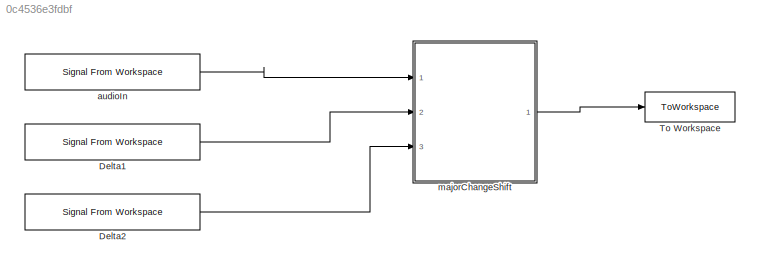
MODEL slx_0c4536e3fdbf
KIND model
CONFIG AbsTol = auto
CONFIG EnableMultiTasking = off
CONFIG FixedStep = auto
CONFIG InitFcn = initCallback
CONFIG MaxStep = auto
CONFIG MinStep = auto
CONFIG PostLoadFcn = postLoadCallback
CONFIG RelTol = 1e-3
CONFIG SampleTimeConstraint = Unconstrained
CONFIG SolverName = VariableStepAuto
CONFIG StartTime = 0.0
CONFIG StopFcn = stopCallback
CONFIG StopTime = 3
BLOCK [Reference] Delta1  REF=dspsrcs4/Signal From
Workspace
  Ports = [0, 1]
  SourceBlock = dspsrcs4/Signal From\nWorkspace
  SourceProductBaseCode = DS
  SourceType = Signal From Workspace
BLOCK [Reference] Delta2  REF=dspsrcs4/Signal From
Workspace
  Ports = [0, 1]
  SourceBlock = dspsrcs4/Signal From\nWorkspace
  SourceProductBaseCode = DS
  SourceType = Signal From Workspace
BLOCK [ToWorkspace] To Workspace
  FixptAsFi = on
  MaxDataPoints = inf
  Ports = [1]
  SampleTime = -1
  Save2DSignal = 2-D array (concatenate along first dimension)
  VariableName = AudioOut
BLOCK [Reference] audioIn  REF=dspsrcs4/Signal From
Workspace
  Ports = [0, 1]
  SourceBlock = dspsrcs4/Signal From\nWorkspace
  SourceProductBaseCode = DS
  SourceType = Signal From Workspace
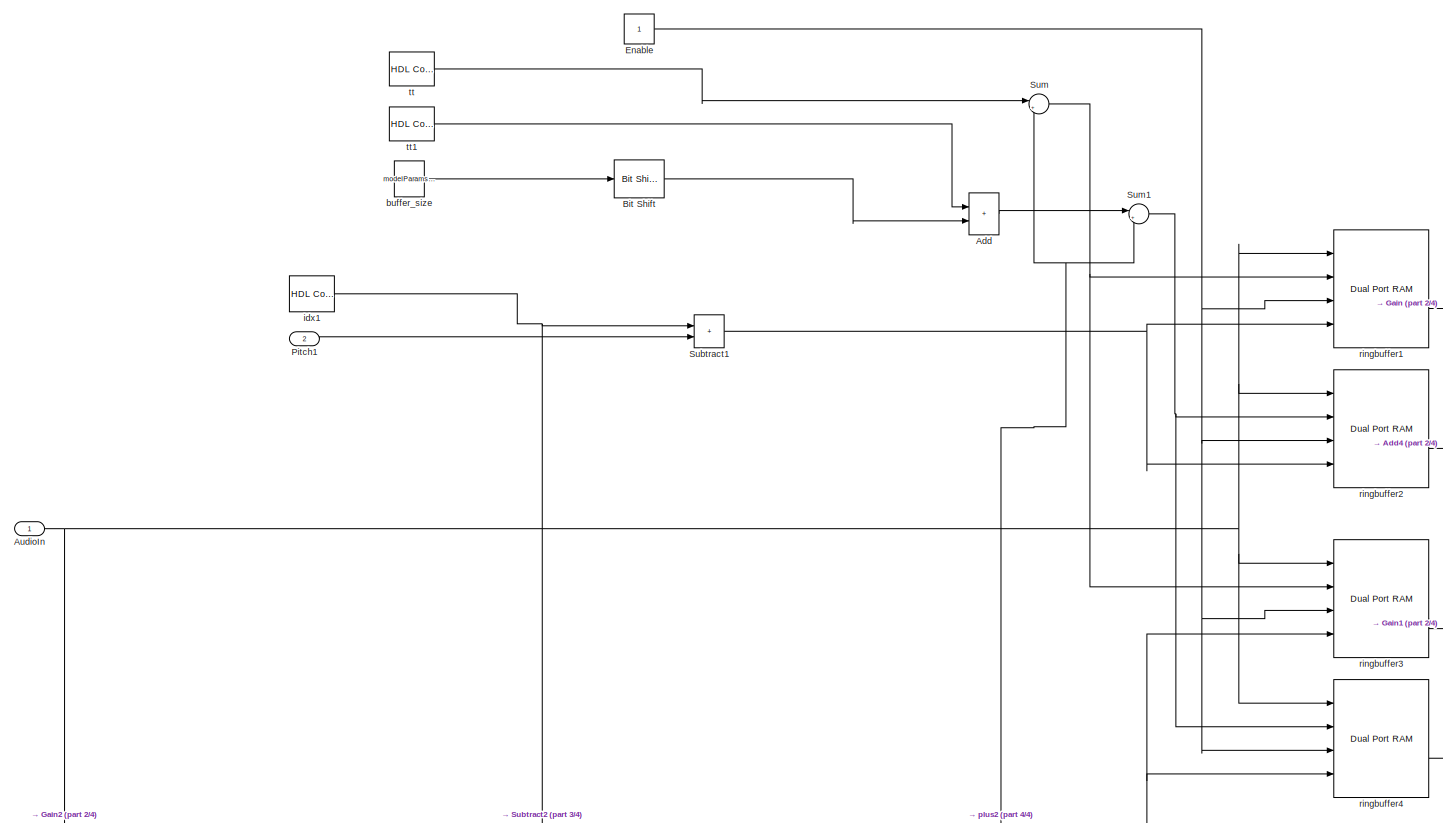
[diagram: majorChangeShift - part 1/4, most of the canvas]
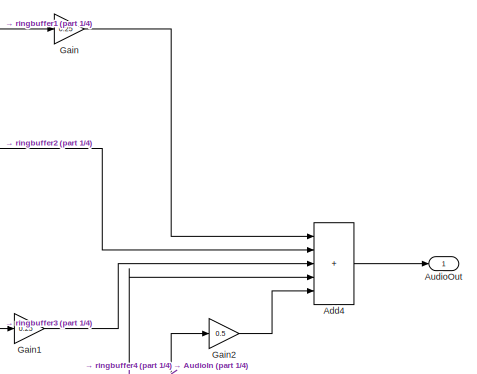
[diagram: majorChangeShift - part 2/4, middle right region]
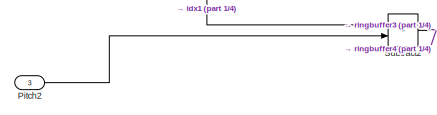
[diagram: majorChangeShift - part 3/4, bottom left region]
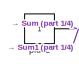
[diagram: majorChangeShift - part 4/4, bottom left region]
BLOCK [SubSystem] majorChangeShift
  Ports = [3, 1]
  RequestExecContextInheritance = off
BLOCK [Sum] majorChangeShift/Add
  IconShape = rectangular
  Ports = [2, 1]
  SampleTime = modelParams.audio.samplePeriod
BLOCK [Sum] majorChangeShift/Add4
  AccumDataTypeStr = Inherit: Same as first input
  IconShape = rectangular
  Inputs = +++++
  OutDataTypeStr = fixdt(1,24,16)
  Ports = [5, 1]
  SampleTime = modelParams.audio.samplePeriod
BLOCK [Inport] majorChangeShift/AudioIn
  SampleTime = modelParams.audio.samplePeriod
BLOCK [Outport] majorChangeShift/AudioOut
BLOCK [Reference] majorChangeShift/Bit Shift  REF=hdlsllib/Logic and Bit
Operations/Bit Shift
  Ports = [1, 1]
  SourceBlock = hdlsllib/Logic and Bit\nOperations/Bit Shift
  SourceProductBaseCode = SL
  SourceType = Bit Shift
BLOCK [Constant] majorChangeShift/Enable
  OutDataTypeStr = boolean
  SampleTime = modelParams.audio.samplePeriod
BLOCK [Gain] majorChangeShift/Gain
  Gain = 0.25
  SampleTime = modelParams.audio.samplePeriod
BLOCK [Gain] majorChangeShift/Gain1
  Gain = 0.25
  SampleTime = modelParams.audio.samplePeriod
BLOCK [Gain] majorChangeShift/Gain2
  Gain = 0.5
  SampleTime = modelParams.audio.samplePeriod
BLOCK [Inport] majorChangeShift/Pitch1
  Port = 2
  SampleTime = modelParams.audio.samplePeriod
BLOCK [Inport] majorChangeShift/Pitch2
  Port = 3
  SampleTime = modelParams.audio.samplePeriod
BLOCK [Sum] majorChangeShift/Subtract1
  AccumDataTypeStr = Inherit: Same as first input
  IconShape = rectangular
  OutDataTypeStr = Inherit: Inherit via back propagation
  Ports = [2, 1]
  RndMeth = Round
  SampleTime = modelParams.audio.samplePeriod
BLOCK [Sum] majorChangeShift/Subtract2
  AccumDataTypeStr = Inherit: Same as first input
  IconShape = rectangular
  OutDataTypeStr = Inherit: Inherit via back propagation
  Ports = [2, 1]
  RndMeth = Round
  SampleTime = modelParams.audio.samplePeriod
BLOCK [Sum] majorChangeShift/Sum
  AccumDataTypeStr = Inherit: Same as first input
  Inputs = |++
  OutDataTypeStr = uint16
  Ports = [2, 1]
  SampleTime = modelParams.audio.samplePeriod
BLOCK [Sum] majorChangeShift/Sum1
  AccumDataTypeStr = Inherit: Same as first input
  Inputs = |++
  OutDataTypeStr = uint16
  Ports = [2, 1]
  SampleTime = modelParams.audio.samplePeriod
BLOCK [Constant] majorChangeShift/buffer_size
  SampleTime = modelParams.audio.samplePeriod
  Value = modelParams.buffer_size
BLOCK [Reference] majorChangeShift/idx1  REF=hdlsllib/Sources/HDL Counter
  Ports = [0, 1]
  SourceBlock = hdlsllib/Sources/HDL Counter
  SourceProductBaseCode = SL
  SourceType = HDL Counter
BLOCK [Constant] majorChangeShift/plus2
  OutDataTypeStr = Inherit: Inherit via back propagation
  SampleTime = modelParams.audio.samplePeriod
BLOCK [Reference] majorChangeShift/ringbuffer1  REF=hdlsllib/HDL RAMs/Dual Port RAM
  Ports = [4, 2]
  SourceBlock = hdlsllib/HDL RAMs/Dual Port RAM
  SourceProductBaseCode = SL
  SourceType = Dual-port RAM
BLOCK [Reference] majorChangeShift/ringbuffer2  REF=hdlsllib/HDL RAMs/Dual Port RAM
  Ports = [4, 2]
  SourceBlock = hdlsllib/HDL RAMs/Dual Port RAM
  SourceProductBaseCode = SL
  SourceType = Dual-port RAM
BLOCK [Reference] majorChangeShift/ringbuffer3  REF=hdlsllib/HDL RAMs/Dual Port RAM
  Ports = [4, 2]
  SourceBlock = hdlsllib/HDL RAMs/Dual Port RAM
  SourceProductBaseCode = SL
  SourceType = Dual-port RAM
BLOCK [Reference] majorChangeShift/ringbuffer4  REF=hdlsllib/HDL RAMs/Dual Port RAM
  Ports = [4, 2]
  SourceBlock = hdlsllib/HDL RAMs/Dual Port RAM
  SourceProductBaseCode = SL
  SourceType = Dual-port RAM
BLOCK [Reference] majorChangeShift/tt  REF=hdlsllib/Sources/HDL Counter
  Ports = [0, 1]
  SourceBlock = hdlsllib/Sources/HDL Counter
  SourceProductBaseCode = SL
  SourceType = HDL Counter
BLOCK [Reference] majorChangeShift/tt1  REF=hdlsllib/Sources/HDL Counter
  Ports = [0, 1]
  SourceBlock = hdlsllib/Sources/HDL Counter
  SourceProductBaseCode = SL
  SourceType = HDL Counter
LINE Delta1:1 -> majorChangeShift:2
LINE Delta2:1 -> majorChangeShift:3
LINE audioIn:1 -> majorChangeShift:1
LINE majorChangeShift/Add4:1 -> majorChangeShift/AudioOut:1
LINE majorChangeShift/Add:1 -> majorChangeShift/Sum1:1
NET majorChangeShift/AudioIn:1 -> majorChangeShift/Gain2:1, majorChangeShift/ringbuffer1:1, majorChangeShift/ringbuffer2:1, majorChangeShift/ringbuffer3:1, majorChangeShift/ringbuffer4:1
LINE majorChangeShift/Bit Shift:1 -> majorChangeShift/Add:2
NET majorChangeShift/Enable:1 -> majorChangeShift/ringbuffer1:3, majorChangeShift/ringbuffer2:3, majorChangeShift/ringbuffer3:3, majorChangeShift/ringbuffer4:3
LINE majorChangeShift/Gain1:1 -> majorChangeShift/Add4:3
LINE majorChangeShift/Gain2:1 -> majorChangeShift/Add4:5
LINE majorChangeShift/Gain:1 -> majorChangeShift/Add4:1
LINE majorChangeShift/Pitch1:1 -> majorChangeShift/Subtract1:2
LINE majorChangeShift/Pitch2:1 -> majorChangeShift/Subtract2:2
NET majorChangeShift/Subtract1:1 -> majorChangeShift/ringbuffer1:4, majorChangeShift/ringbuffer2:4
NET majorChangeShift/Subtract2:1 -> majorChangeShift/ringbuffer3:4, majorChangeShift/ringbuffer4:4
NET majorChangeShift/Sum1:1 -> majorChangeShift/ringbuffer2:2, majorChangeShift/ringbuffer4:2
NET majorChangeShift/Sum:1 -> majorChangeShift/ringbuffer1:2, majorChangeShift/ringbuffer3:2
LINE majorChangeShift/buffer_size:1 -> majorChangeShift/Bit Shift:1
NET majorChangeShift/idx1:1 -> majorChangeShift/Subtract1:1, majorChangeShift/Subtract2:1
NET majorChangeShift/plus2:1 -> majorChangeShift/Sum1:2, majorChangeShift/Sum:2
LINE majorChangeShift/ringbuffer1:2 -> majorChangeShift/Gain:1
LINE majorChangeShift/ringbuffer2:2 -> majorChangeShift/Add4:2
LINE majorChangeShift/ringbuffer3:2 -> majorChangeShift/Gain1:1
LINE majorChangeShift/ringbuffer4:2 -> majorChangeShift/Add4:4
LINE majorChangeShift/tt1:1 -> majorChangeShift/Add:1
LINE majorChangeShift/tt:1 -> majorChangeShift/Sum:1
LINE majorChangeShift:1 -> To Workspace:1
note: NET lines group one-source signal fan-out (src -> all destinations, sorted); 1:1 wires keep LINE
